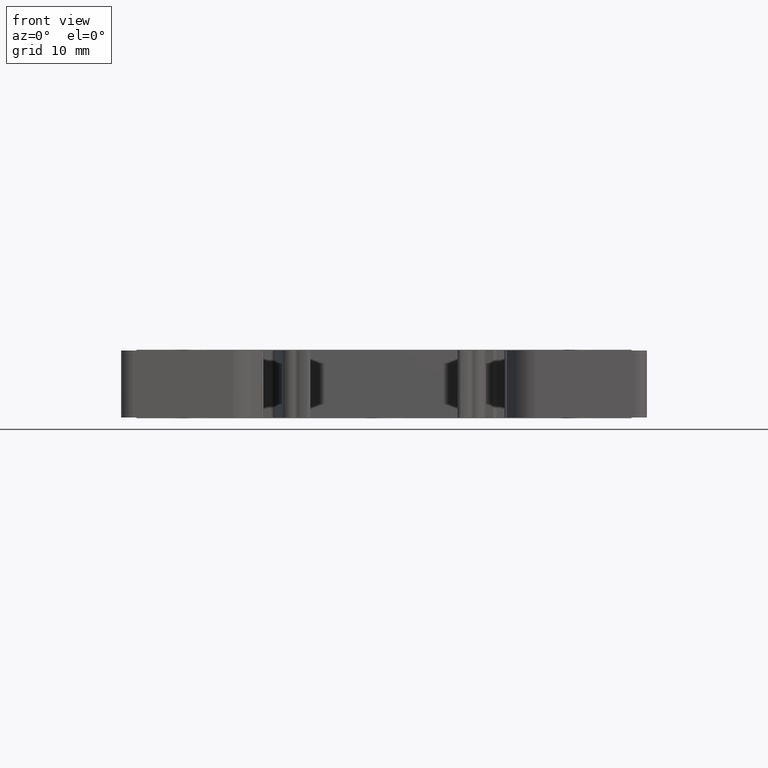
[diagram: clean part render]
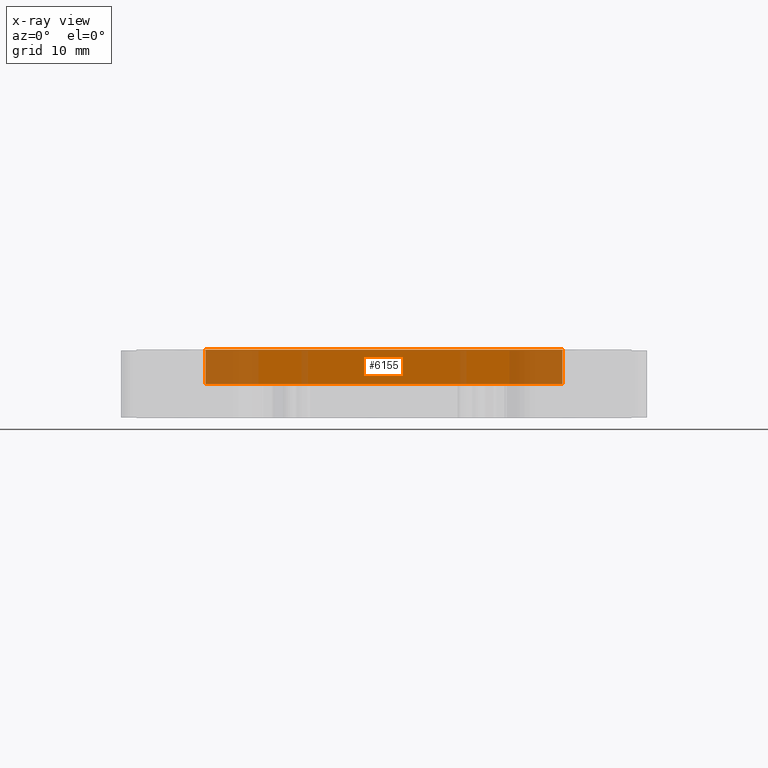
[diagram: x-ray — body ghosted, one internal face saturated and labeled with its STEP entity id]
A machine part, front view, then the same camera in x-ray: the body is ghosted and one INTERNAL B-rep face — a face not visible from any outside direction — is saturated and labeled: STEP entity #6155.
In plain terms, the highlighted planar face has unit normal (0, -1, 0).
Its self-contained STEP definition (entity closure, byte-faithful):
#2736 = VECTOR ( 'NONE', #4408, 1000.000000000000000 ) ;
#2892 = VECTOR ( 'NONE', #19834, 1000.000000000000000 ) ;
#2919 = VECTOR ( 'NONE', #3519, 1000.000000000000000 ) ;
#3030 = VECTOR ( 'NONE', #11266, 1000.000000000000000 ) ;
#3510 = CARTESIAN_POINT ( 'NONE',  ( 448.8254475470134800, 110.7985886008790000, -46.85973354774110100 ) ) ;
#3519 = DIRECTION ( 'NONE',  ( 0.0000000000000000000, -0.0000000000000000000, -1.000000000000000000 ) ) ;
#3530 = LINE ( 'NONE', #3510, #2919 ) ;
#4393 = LINE ( 'NONE', #4399, #2736 ) ;
#4399 = CARTESIAN_POINT ( 'NONE',  ( 472.2252094327939700, 110.7985886008790000, 31.39999999999999900 ) ) ;
#4408 = DIRECTION ( 'NONE',  ( 1.000000000000000000, 2.965369450243745100E-016, 0.0000000000000000000 ) ) ;
#5496 = EDGE_LOOP ( 'NONE', ( #9649, #9686, #9595, #9625 ) ) ;
#6155 = ADVANCED_FACE ( 'NONE', ( #18550 ), #18560, .T. ) ;
#6974 = EDGE_CURVE ( 'NONE', #8861, #8892, #4393, .T. ) ;
#7008 = EDGE_CURVE ( 'NONE', #8951, #8861, #3530, .T. ) ;
#7029 = EDGE_CURVE ( 'NONE', #8892, #8965, #19830, .T. ) ;
#7042 = EDGE_CURVE ( 'NONE', #8951, #8965, #11276, .T. ) ;
#8861 = VERTEX_POINT ( 'NONE', #13676 ) ;
#8892 = VERTEX_POINT ( 'NONE', #13960 ) ;
#8951 = VERTEX_POINT ( 'NONE', #14075 ) ;
#8965 = VERTEX_POINT ( 'NONE', #14011 ) ;
#9595 = ORIENTED_EDGE ( 'NONE', *, *, #6974, .T. ) ;
#9625 = ORIENTED_EDGE ( 'NONE', *, *, #7029, .T. ) ;
#9649 = ORIENTED_EDGE ( 'NONE', *, *, #7042, .F. ) ;
#9686 = ORIENTED_EDGE ( 'NONE', *, *, #7008, .T. ) ;
#11266 = DIRECTION ( 'NONE',  ( 1.000000000000000000, 0.0000000000000000000, -0.0000000000000000000 ) ) ;
#11272 = CARTESIAN_POINT ( 'NONE',  ( 472.5752094327940000, 110.7985886008790000, 35.89999999999999900 ) ) ;
#11276 = LINE ( 'NONE', #11272, #3030 ) ;
#13676 = CARTESIAN_POINT ( 'NONE',  ( 448.8254475470134800, 110.7985886008789900, 31.39999999999999900 ) ) ;
#13960 = CARTESIAN_POINT ( 'NONE',  ( 495.6249713185750400, 110.7985886008789900, 31.39999999999999900 ) ) ;
#14011 = CARTESIAN_POINT ( 'NONE',  ( 495.6249713185750400, 110.7985886008789900, 35.89999999999999900 ) ) ;
#14075 = CARTESIAN_POINT ( 'NONE',  ( 448.8254475470134800, 110.7985886008789900, 35.89999999999999900 ) ) ;
#18548 = DIRECTION ( 'NONE',  ( 2.965369450243745100E-016, -1.000000000000000000, 0.0000000000000000000 ) ) ;
#18550 = FACE_OUTER_BOUND ( 'NONE', #5496, .T. ) ;
#18555 = DIRECTION ( 'NONE',  ( 1.000000000000000000, 2.965369450243745100E-016, 0.0000000000000000000 ) ) ;
#18559 = CARTESIAN_POINT ( 'NONE',  ( 472.2252094327939700, 110.7985886008790000, -46.85973354774110100 ) ) ;
#18560 = PLANE ( 'NONE',  #19658 ) ;
#19658 = AXIS2_PLACEMENT_3D ( 'NONE', #18559, #18548, #18555 ) ;
#19830 = LINE ( 'NONE', #19833, #2892 ) ;
#19833 = CARTESIAN_POINT ( 'NONE',  ( 495.6249713185750400, 110.7985886008790100, -46.85973354774110100 ) ) ;
#19834 = DIRECTION ( 'NONE',  ( -0.0000000000000000000, 0.0000000000000000000, 1.000000000000000000 ) ) ;